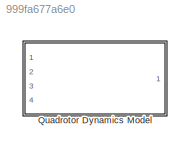
MODEL slx_999fa677a6e0
KIND model
CONFIG AbsTol = auto
CONFIG EnableMultiTasking = off
CONFIG FixedStep = auto
CONFIG MaxStep = auto
CONFIG MinStep = auto
CONFIG RelTol = 1e-3
CONFIG SampleTimeConstraint = Unconstrained
CONFIG Solver = VariableStepAuto
CONFIG SolverName = VariableStepAuto
CONFIG StartTime = 0.0
CONFIG StopTime = 10.0
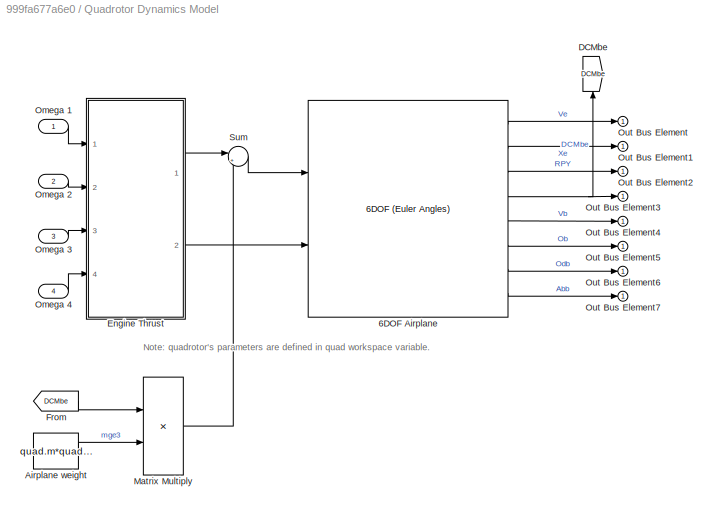
BLOCK [SubSystem] Quadrotor Dynamics Model
  Ports = [4, 1]
  RequestExecContextInheritance = off
  Variant = off
BLOCK [Reference] Quadrotor Dynamics Model/6DOF Airplane  REF=shared6dof/6DOF (Euler Angles)
  Ports = [2, 8]
  SourceBlock = shared6dof/6DOF (Euler Angles)
  SourceProductBaseCode = AE
  SourceProductName = Aerospace Blockset
  SourceType = 6DOF EoM (Body Axis)
BLOCK [Constant] Quadrotor Dynamics Model/Airplane weight
  Value = quad.m*quad.g*[0;0;1]
BLOCK [Goto] Quadrotor Dynamics Model/DCMbe
  GotoTag = DCMbe
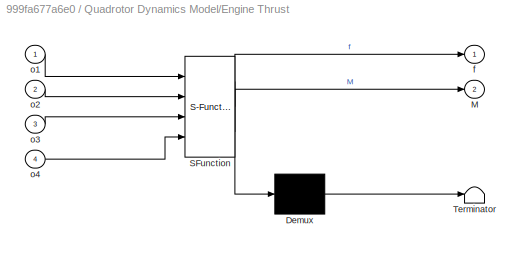
BLOCK [SubSystem] Quadrotor Dynamics Model/Engine Thrust
  ErrorFcn = Stateflow.Translate.translate
  PermitHierarchicalResolution = ExplicitOnly
  Ports = [4, 2]
  RequestExecContextInheritance = off
  SFBlockType = MATLAB Function
  TreatAsAtomicUnit = on
  Variant = off
BLOCK [Demux] Quadrotor Dynamics Model/Engine Thrust/ Demux 
  Outputs = 1
  Ports = [1, 1]
BLOCK [S-Function] Quadrotor Dynamics Model/Engine Thrust/ SFunction 
  EnableBusSupport = off
  FunctionName = sf_sfun
  Parameters = ct,dctcq
  PortCounts = [4 3]
  Ports = [4, 3]
  SFcnIsStateOwnerBlock = off
  SFunctionDeploymentMode = off
  Tag = Stateflow S-Function ABS_Quadrotor 2
BLOCK [Terminator] Quadrotor Dynamics Model/Engine Thrust/ Terminator 
BLOCK [Outport] Quadrotor Dynamics Model/Engine Thrust/M
  IconDisplay = Port number
  Port = 2
BLOCK [Outport] Quadrotor Dynamics Model/Engine Thrust/f
  IconDisplay = Port number
BLOCK [Inport] Quadrotor Dynamics Model/Engine Thrust/o1
  IconDisplay = Port number
BLOCK [Inport] Quadrotor Dynamics Model/Engine Thrust/o2
  IconDisplay = Port number
  Port = 2
BLOCK [Inport] Quadrotor Dynamics Model/Engine Thrust/o3
  IconDisplay = Port number
  Port = 3
BLOCK [Inport] Quadrotor Dynamics Model/Engine Thrust/o4
  IconDisplay = Port number
  Port = 4
BLOCK [From] Quadrotor Dynamics Model/From
  GotoTag = DCMbe
BLOCK [Product] Quadrotor Dynamics Model/Matrix Multiply
  InputSameDT = off
  Multiplication = Matrix(*)
  OutDataTypeStr = Inherit: Inherit via internal rule
  Ports = [2, 1]
  RndMeth = Floor
  SaturateOnIntegerOverflow = off
BLOCK [Inport] Quadrotor Dynamics Model/Omega 1
  IconDisplay = Port number
BLOCK [Inport] Quadrotor Dynamics Model/Omega 2
  IconDisplay = Port number
  Port = 2
BLOCK [Inport] Quadrotor Dynamics Model/Omega 3
  IconDisplay = Port number
  Port = 3
BLOCK [Inport] Quadrotor Dynamics Model/Omega 4
  IconDisplay = Port number
  Port = 4
BLOCK [Outport] Quadrotor Dynamics Model/Out Bus Element
  IconDisplay = Port number
BLOCK [Outport] Quadrotor Dynamics Model/Out Bus Element1
  IconDisplay = Port number
BLOCK [Outport] Quadrotor Dynamics Model/Out Bus Element2
  IconDisplay = Port number
BLOCK [Outport] Quadrotor Dynamics Model/Out Bus Element3
  IconDisplay = Port number
BLOCK [Outport] Quadrotor Dynamics Model/Out Bus Element4
  IconDisplay = Port number
BLOCK [Outport] Quadrotor Dynamics Model/Out Bus Element5
  IconDisplay = Port number
BLOCK [Outport] Quadrotor Dynamics Model/Out Bus Element6
  IconDisplay = Port number
BLOCK [Outport] Quadrotor Dynamics Model/Out Bus Element7
  IconDisplay = Port number
BLOCK [Sum] Quadrotor Dynamics Model/Sum
  IconShape = round
  InputSameDT = off
  Inputs = |++
  OutDataTypeStr = Inherit: Inherit via internal rule
  Ports = [2, 1]
  SaturateOnIntegerOverflow = off
ANNOTATION Quadrotor Dynamics Model: Note: quadrotor's parameters are defined in quad workspace variable.
LINE Quadrotor Dynamics Model/6DOF Airplane:1 -> Quadrotor Dynamics Model/Out Bus Element:1
LINE Quadrotor Dynamics Model/6DOF Airplane:2 -> Quadrotor Dynamics Model/Out Bus Element1:1
LINE Quadrotor Dynamics Model/6DOF Airplane:3 -> Quadrotor Dynamics Model/Out Bus Element2:1
NET Quadrotor Dynamics Model/6DOF Airplane:4 -> Quadrotor Dynamics Model/DCMbe:1, Quadrotor Dynamics Model/Out Bus Element3:1
LINE Quadrotor Dynamics Model/6DOF Airplane:5 -> Quadrotor Dynamics Model/Out Bus Element4:1
LINE Quadrotor Dynamics Model/6DOF Airplane:6 -> Quadrotor Dynamics Model/Out Bus Element5:1
LINE Quadrotor Dynamics Model/6DOF Airplane:7 -> Quadrotor Dynamics Model/Out Bus Element6:1
LINE Quadrotor Dynamics Model/6DOF Airplane:8 -> Quadrotor Dynamics Model/Out Bus Element7:1
LINE Quadrotor Dynamics Model/Airplane weight:1 -> Quadrotor Dynamics Model/Matrix Multiply:2
LINE Quadrotor Dynamics Model/Engine Thrust:1 -> Quadrotor Dynamics Model/Sum:1
LINE Quadrotor Dynamics Model/Engine Thrust:2 -> Quadrotor Dynamics Model/6DOF Airplane:2
LINE Quadrotor Dynamics Model/From:1 -> Quadrotor Dynamics Model/Matrix Multiply:1
LINE Quadrotor Dynamics Model/Matrix Multiply:1 -> Quadrotor Dynamics Model/Sum:2
LINE Quadrotor Dynamics Model/Omega 1:1 -> Quadrotor Dynamics Model/Engine Thrust:1
LINE Quadrotor Dynamics Model/Omega 2:1 -> Quadrotor Dynamics Model/Engine Thrust:2
LINE Quadrotor Dynamics Model/Omega 3:1 -> Quadrotor Dynamics Model/Engine Thrust:3
LINE Quadrotor Dynamics Model/Omega 4:1 -> Quadrotor Dynamics Model/Engine Thrust:4
LINE Quadrotor Dynamics Model/Sum:1 -> Quadrotor Dynamics Model/6DOF Airplane:1
note: NET lines group one-source signal fan-out (src -> all destinations, sorted); 1:1 wires keep LINE
CHART Quadrotor Dynamics Model/Engine Thrust states=1 transitions=1
  STATE_LABEL 'eML_blk_kernel()'
  STATE_LABEL 'SCRIPT:\nfunction [f,M] = fcn(o1,o2,o3,o4,ct, dctcq)\n[f,M] = omega2force(o1,o2,o3,o4,ct,dctcq);'
